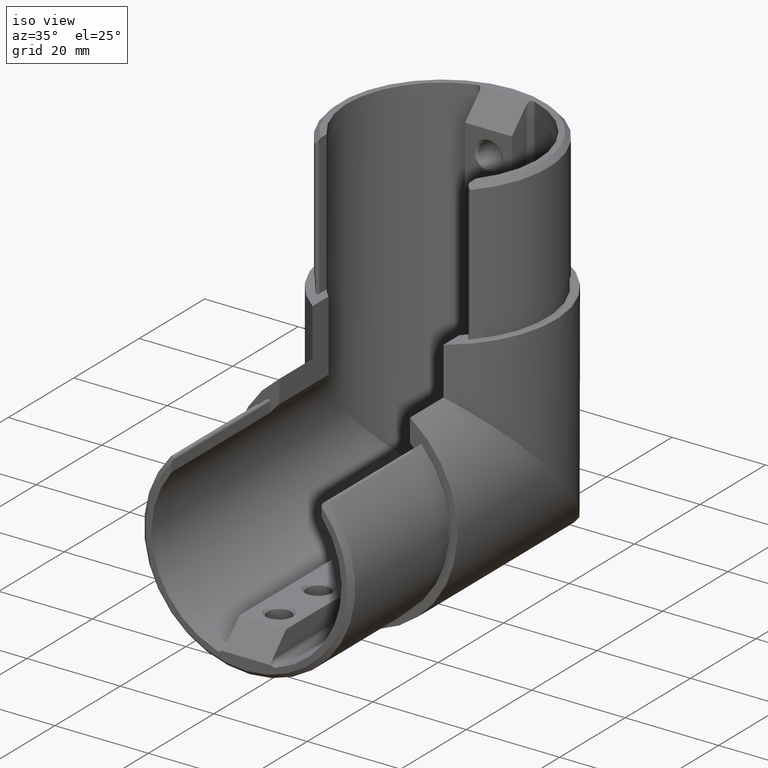
[diagram: clean part render]
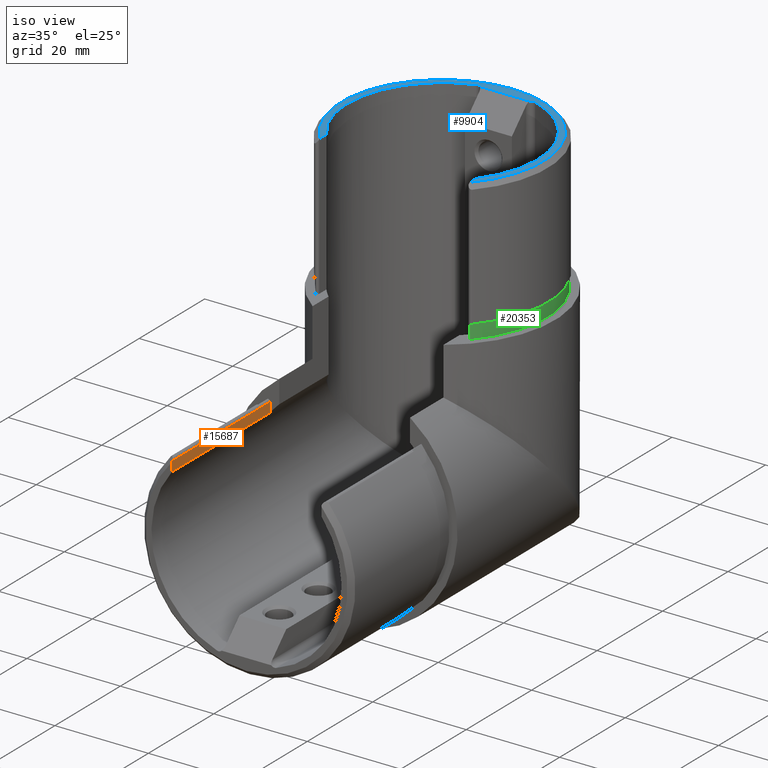
[diagram: same view with three faces highlighted in distinct colors, each labeled with its STEP entity id]
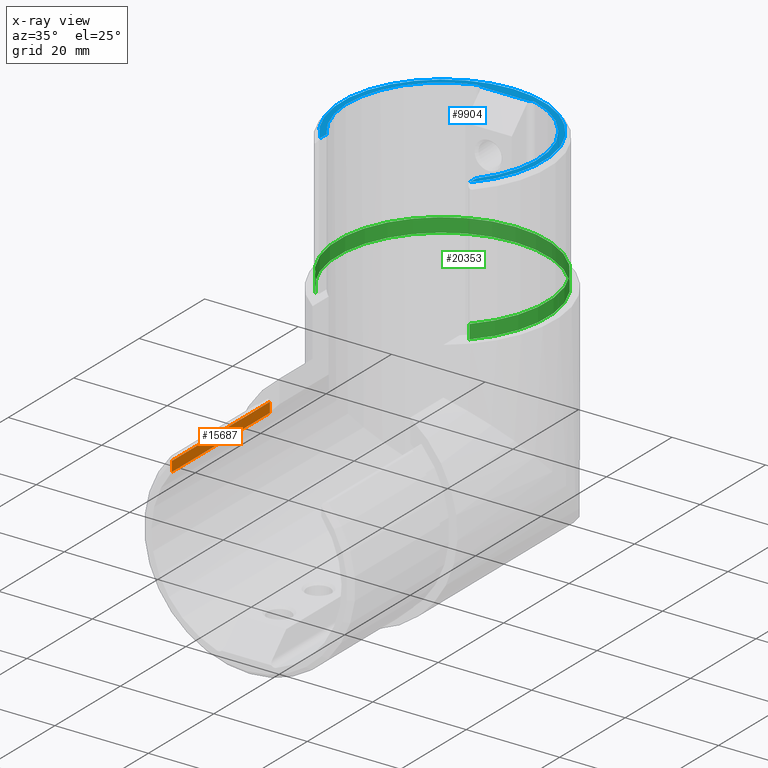
[diagram: x-ray of the same camera — body ghosted, the three highlighted faces saturated]
A machine part, iso view with three faces highlighted in distinct colors.
The next image is the same camera in x-ray (body ghosted, the three faces saturated) — at least one of them is partly hidden behind the body in this view.
Their STEP definitions:

[orange] entity #15687 — the highlighted planar face has unit normal (1, 0, 0).
#61 = PLANE ( 'NONE',  #8720 ) ;
#1219 = CARTESIAN_POINT ( 'NONE',  ( -16.00000000000000400, 0.0000000000000000000, 12.57467693421981800 ) ) ;
#1858 = VERTEX_POINT ( 'NONE', #21850 ) ;
#1959 = DIRECTION ( 'NONE',  ( 0.0000000000000000000, -1.000000000000000000, -2.220446049250313100E-016 ) ) ;
#2788 = ORIENTED_EDGE ( 'NONE', *, *, #14001, .T. ) ;
#4902 = DIRECTION ( 'NONE',  ( -0.0000000000000000000, 1.000000000000000000, 2.220446049250313100E-016 ) ) ;
#5022 = CARTESIAN_POINT ( 'NONE',  ( -16.00000000000000400, -29.99999999999999600, 12.57467693421980600 ) ) ;
#5255 = VERTEX_POINT ( 'NONE', #12194 ) ;
#5727 = ORIENTED_EDGE ( 'NONE', *, *, #16808, .T. ) ;
#5734 = ORIENTED_EDGE ( 'NONE', *, *, #23807, .T. ) ;
#6054 = VERTEX_POINT ( 'NONE', #18265 ) ;
#6685 = VECTOR ( 'NONE', #17085, 1000.000000000000000 ) ;
#7675 = DIRECTION ( 'NONE',  ( 0.0000000000000000000, 0.0000000000000000000, -1.000000000000000000 ) ) ;
#8425 = LINE ( 'NONE', #8485, #8735 ) ;
#8485 = CARTESIAN_POINT ( 'NONE',  ( -16.00000000000000400, -29.99999999999999600, 12.57467693421980600 ) ) ;
#8494 = LINE ( 'NONE', #23631, #13095 ) ;
#8595 = CARTESIAN_POINT ( 'NONE',  ( -16.00000000000000400, -29.87075703113422200, 14.70238075959128200 ) ) ;
#8720 = AXIS2_PLACEMENT_3D ( 'NONE', #10003, #13782, #7675 ) ;
#8735 = VECTOR ( 'NONE', #4902, 1000.000000000000000 ) ;
#10003 = CARTESIAN_POINT ( 'NONE',  ( -16.00000000000000400, -29.99999999999999600, 12.57467693421980600 ) ) ;
#10991 = LINE ( 'NONE', #5022, #6685 ) ;
#11295 = EDGE_CURVE ( 'NONE', #5255, #17431, #20047, .T. ) ;
#12194 = CARTESIAN_POINT ( 'NONE',  ( -16.00000000000000400, 2.997001796651528900E-015, 14.70238075959128000 ) ) ;
#13095 = VECTOR ( 'NONE', #1959, 1000.000000000000000 ) ;
#13782 = DIRECTION ( 'NONE',  ( 1.000000000000000000, 0.0000000000000000000, 0.0000000000000000000 ) ) ;
#13847 = B_SPLINE_CURVE_WITH_KNOTS ( 'NONE', 3,
 ( #8595, #24025, #14243, #16226 ),
 .UNSPECIFIED., .F., .F.,
 ( 4, 4 ),
 ( 0.001530635616908292100, 0.001761817322065297500 ),
 .UNSPECIFIED. ) ;
#14001 = EDGE_CURVE ( 'NONE', #21805, #6054, #13847, .T. ) ;
#14243 = CARTESIAN_POINT ( 'NONE',  ( -16.00000000000000400, -29.95702471097675700, 14.57465693601618500 ) ) ;
#14771 = EDGE_LOOP ( 'NONE', ( #18289, #17443, #2788, #5727, #5734 ) ) ;
#15578 = FACE_OUTER_BOUND ( 'NONE', #14771, .T. ) ;
#15687 = ADVANCED_FACE ( 'NONE', ( #15578 ), #61, .T. ) ;
#16226 = CARTESIAN_POINT ( 'NONE',  ( -16.00000000000000400, -29.99999999999999600, 14.51068571777354200 ) ) ;
#16675 = CARTESIAN_POINT ( 'NONE',  ( -16.00000000000000400, 3.469446951953614200E-015, 12.57467693421981300 ) ) ;
#16808 = EDGE_CURVE ( 'NONE', #6054, #1858, #10991, .T. ) ;
#17085 = DIRECTION ( 'NONE',  ( 0.0000000000000000000, 2.220446049250313100E-016, -1.000000000000000000 ) ) ;
#17281 = VECTOR ( 'NONE', #24569, 1000.000000000000000 ) ;
#17431 = VERTEX_POINT ( 'NONE', #1219 ) ;
#17443 = ORIENTED_EDGE ( 'NONE', *, *, #19152, .T. ) ;
#18265 = CARTESIAN_POINT ( 'NONE',  ( -16.00000000000000400, -29.99999999999999600, 14.51068571777354200 ) ) ;
#18289 = ORIENTED_EDGE ( 'NONE', *, *, #11295, .F. ) ;
#19152 = EDGE_CURVE ( 'NONE', #5255, #21805, #8494, .T. ) ;
#20047 = LINE ( 'NONE', #16675, #17281 ) ;
#20951 = CARTESIAN_POINT ( 'NONE',  ( -16.00000000000000400, -29.87075703113422200, 14.70238075959128200 ) ) ;
#21805 = VERTEX_POINT ( 'NONE', #20951 ) ;
#21850 = CARTESIAN_POINT ( 'NONE',  ( -16.00000000000000400, -29.99999999999999600, 12.57467693421980600 ) ) ;
#23631 = CARTESIAN_POINT ( 'NONE',  ( -16.00000000000000400, -29.99999999999999600, 14.70238075959127300 ) ) ;
#23807 = EDGE_CURVE ( 'NONE', #1858, #17431, #8425, .T. ) ;
#24025 = CARTESIAN_POINT ( 'NONE',  ( -16.00000000000000400, -29.91394285426274600, 14.63855468550746000 ) ) ;
#24569 = DIRECTION ( 'NONE',  ( 0.0000000000000000000, 2.220446049250313100E-016, -1.000000000000000000 ) ) ;

[blue] entity #9904 — the highlighted planar face has unit normal (0, 0, 1).
#66 = EDGE_CURVE ( 'NONE', #11297, #24157, #348, .T. ) ;
#199 = VERTEX_POINT ( 'NONE', #14787 ) ;
#348 = LINE ( 'NONE', #24857, #9850 ) ;
#548 = CARTESIAN_POINT ( 'NONE',  ( 16.00000000000000400, 17.27532306578018200, 59.85000000000000100 ) ) ;
#1955 = CIRCLE ( 'NONE', #13031, 1.000000000000000000 ) ;
#2384 = LINE ( 'NONE', #5919, #11515 ) ;
#2607 = CARTESIAN_POINT ( 'NONE',  ( 0.0000000000000000000, 48.95000000000001700, 59.85000000000000100 ) ) ;
#2746 = EDGE_LOOP ( 'NONE', ( #13804, #12158, #20610, #23987, #13715, #10777, #13408, #7395 ) ) ;
#2768 = CARTESIAN_POINT ( 'NONE',  ( -16.00000000000000400, 17.27532306578018200, 59.85000000000000100 ) ) ;
#2787 = DIRECTION ( 'NONE',  ( 1.000000000000000000, 0.0000000000000000000, 0.0000000000000000000 ) ) ;
#2804 = EDGE_CURVE ( 'NONE', #13903, #199, #1955, .T. ) ;
#3066 = PLANE ( 'NONE',  #22772 ) ;
#5031 = CARTESIAN_POINT ( 'NONE',  ( 0.0000000000000000000, 29.84999999999999800, 59.85000000000000100 ) ) ;
#5151 = DIRECTION ( 'NONE',  ( -0.0000000000000000000, 1.000000000000000000, -0.0000000000000000000 ) ) ;
#5392 = EDGE_CURVE ( 'NONE', #199, #24175, #9852, .T. ) ;
#5445 = EDGE_CURVE ( 'NONE', #7607, #10855, #17532, .T. ) ;
#5919 = CARTESIAN_POINT ( 'NONE',  ( 16.00000000000000400, 17.27532306578018200, 59.85000000000000100 ) ) ;
#5960 = DIRECTION ( 'NONE',  ( -0.0000000000000000000, -0.0000000000000000000, -1.000000000000000000 ) ) ;
#6473 = VECTOR ( 'NONE', #2787, 1000.000000000000000 ) ;
#6918 = EDGE_CURVE ( 'NONE', #24175, #7607, #10136, .T. ) ;
#6966 = DIRECTION ( 'NONE',  ( 1.000000000000000000, 0.0000000000000000000, -0.0000000000000000000 ) ) ;
#7227 = DIRECTION ( 'NONE',  ( 1.000000000000000000, 0.0000000000000000000, 0.0000000000000000000 ) ) ;
#7395 = ORIENTED_EDGE ( 'NONE', *, *, #66, .T. ) ;
#7421 = AXIS2_PLACEMENT_3D ( 'NONE', #16283, #20235, #22119 ) ;
#7607 = VERTEX_POINT ( 'NONE', #12522 ) ;
#8039 = CARTESIAN_POINT ( 'NONE',  ( -6.000000000000000000, 48.24626320751037400, 59.85000000000000100 ) ) ;
#8439 = AXIS2_PLACEMENT_3D ( 'NONE', #22413, #14245, #12470 ) ;
#9322 = EDGE_CURVE ( 'NONE', #24157, #13903, #22866, .T. ) ;
#9850 = VECTOR ( 'NONE', #5151, 1000.000000000000000 ) ;
#9852 = LINE ( 'NONE', #2607, #6473 ) ;
#9904 = ADVANCED_FACE ( 'NONE', ( #19769 ), #3066, .T. ) ;
#10012 = DIRECTION ( 'NONE',  ( 1.000000000000000000, -6.938893903907228400E-015, 0.0000000000000000000 ) ) ;
#10136 = CIRCLE ( 'NONE', #22583, 1.000000000000000000 ) ;
#10532 = DIRECTION ( 'NONE',  ( -0.0000000000000000000, -0.0000000000000000000, -1.000000000000000000 ) ) ;
#10542 = CIRCLE ( 'NONE', #25248, 21.59999999999998400 ) ;
#10777 = ORIENTED_EDGE ( 'NONE', *, *, #19634, .T. ) ;
#10855 = VERTEX_POINT ( 'NONE', #548 ) ;
#10988 = EDGE_CURVE ( 'NONE', #24872, #11297, #10542, .T. ) ;
#11297 = VERTEX_POINT ( 'NONE', #12912 ) ;
#11515 = VECTOR ( 'NONE', #15530, 1000.000000000000000 ) ;
#12158 = ORIENTED_EDGE ( 'NONE', *, *, #2804, .T. ) ;
#12470 = DIRECTION ( 'NONE',  ( 1.000000000000000000, 0.0000000000000000000, 0.0000000000000000000 ) ) ;
#12522 = CARTESIAN_POINT ( 'NONE',  ( 6.310077519379848200, 49.19697448438429900, 59.85000000000000100 ) ) ;
#12587 = DIRECTION ( 'NONE',  ( 1.000000000000000000, -6.938893903907228400E-015, 0.0000000000000000000 ) ) ;
#12912 = CARTESIAN_POINT ( 'NONE',  ( -16.00000000000000400, 15.33931428222638300, 59.85000000000000100 ) ) ;
#13031 = AXIS2_PLACEMENT_3D ( 'NONE', #8039, #5960, #10012 ) ;
#13408 = ORIENTED_EDGE ( 'NONE', *, *, #10988, .T. ) ;
#13715 = ORIENTED_EDGE ( 'NONE', *, *, #5445, .T. ) ;
#13804 = ORIENTED_EDGE ( 'NONE', *, *, #9322, .T. ) ;
#13875 = CARTESIAN_POINT ( 'NONE',  ( 16.00000000000000400, 15.33931428222638300, 59.85000000000000100 ) ) ;
#13903 = VERTEX_POINT ( 'NONE', #23253 ) ;
#14245 = DIRECTION ( 'NONE',  ( -0.0000000000000000000, -0.0000000000000000000, -1.000000000000000000 ) ) ;
#14787 = CARTESIAN_POINT ( 'NONE',  ( -5.289539215088972800, 48.95000000000001700, 59.85000000000000100 ) ) ;
#15530 = DIRECTION ( 'NONE',  ( 0.0000000000000000000, -1.000000000000000000, 0.0000000000000000000 ) ) ;
#16117 = CARTESIAN_POINT ( 'NONE',  ( 5.289539215088972800, 48.95000000000001700, 59.85000000000000100 ) ) ;
#16283 = CARTESIAN_POINT ( 'NONE',  ( 0.0000000000000000000, 29.84999999999999800, 59.85000000000000100 ) ) ;
#16934 = DIRECTION ( 'NONE',  ( 0.0000000000000000000, 0.0000000000000000000, 1.000000000000000000 ) ) ;
#17532 = CIRCLE ( 'NONE', #8439, 20.35000000000000100 ) ;
#19003 = CARTESIAN_POINT ( 'NONE',  ( 0.0000000000000000000, 29.84999999999999800, 59.85000000000000100 ) ) ;
#19634 = EDGE_CURVE ( 'NONE', #10855, #24872, #2384, .T. ) ;
#19769 = FACE_OUTER_BOUND ( 'NONE', #2746, .T. ) ;
#20235 = DIRECTION ( 'NONE',  ( -0.0000000000000000000, -0.0000000000000000000, -1.000000000000000000 ) ) ;
#20610 = ORIENTED_EDGE ( 'NONE', *, *, #5392, .T. ) ;
#22119 = DIRECTION ( 'NONE',  ( 1.000000000000000000, 0.0000000000000000000, 0.0000000000000000000 ) ) ;
#22273 = CARTESIAN_POINT ( 'NONE',  ( 6.000000000000000000, 48.24626320751037400, 59.85000000000000100 ) ) ;
#22413 = CARTESIAN_POINT ( 'NONE',  ( 0.0000000000000000000, 29.84999999999999800, 59.85000000000000100 ) ) ;
#22583 = AXIS2_PLACEMENT_3D ( 'NONE', #22273, #10532, #12587 ) ;
#22772 = AXIS2_PLACEMENT_3D ( 'NONE', #5031, #16934, #6966 ) ;
#22794 = DIRECTION ( 'NONE',  ( 0.0000000000000000000, 0.0000000000000000000, 1.000000000000000000 ) ) ;
#22866 = CIRCLE ( 'NONE', #7421, 20.35000000000000100 ) ;
#23253 = CARTESIAN_POINT ( 'NONE',  ( -6.310077519379848200, 49.19697448438429900, 59.85000000000000100 ) ) ;
#23987 = ORIENTED_EDGE ( 'NONE', *, *, #6918, .T. ) ;
#24157 = VERTEX_POINT ( 'NONE', #2768 ) ;
#24175 = VERTEX_POINT ( 'NONE', #16117 ) ;
#24857 = CARTESIAN_POINT ( 'NONE',  ( -16.00000000000000400, 17.27532306578018200, 59.85000000000000100 ) ) ;
#24872 = VERTEX_POINT ( 'NONE', #13875 ) ;
#25248 = AXIS2_PLACEMENT_3D ( 'NONE', #19003, #22794, #7227 ) ;

[green] entity #20353 — the highlighted cylindrical surface (partial cylindrical patch) has radius 22.4 mm, axis along (-0, 0, -1).
#876 = AXIS2_PLACEMENT_3D ( 'NONE', #19394, #7893, #17508 ) ;
#1164 = CIRCLE ( 'NONE', #876, 22.40000000000000600 ) ;
#2142 = DIRECTION ( 'NONE',  ( -0.0000000000000000000, 1.162293786249116600E-016, -1.000000000000000000 ) ) ;
#2248 = DIRECTION ( 'NONE',  ( -0.0000000000000000000, 1.162293786249116600E-016, -1.000000000000000000 ) ) ;
#2505 = VECTOR ( 'NONE', #2248, 1000.000000000000000 ) ;
#3307 = FACE_OUTER_BOUND ( 'NONE', #14280, .T. ) ;
#4762 = VECTOR ( 'NONE', #21953, 1000.000000000000000 ) ;
#5893 = EDGE_CURVE ( 'NONE', #6441, #20438, #17831, .T. ) ;
#6441 = VERTEX_POINT ( 'NONE', #18322 ) ;
#7111 = AXIS2_PLACEMENT_3D ( 'NONE', #23485, #25450, #19618 ) ;
#7893 = DIRECTION ( 'NONE',  ( -0.0000000000000000000, 1.162293786249116600E-016, -1.000000000000000000 ) ) ;
#9000 = VERTEX_POINT ( 'NONE', #20619 ) ;
#9589 = ORIENTED_EDGE ( 'NONE', *, *, #19678, .F. ) ;
#10789 = ORIENTED_EDGE ( 'NONE', *, *, #23698, .T. ) ;
#11809 = CARTESIAN_POINT ( 'NONE',  ( 0.0000000000000000000, 29.85000000000000100, 0.0000000000000000000 ) ) ;
#12170 = ORIENTED_EDGE ( 'NONE', *, *, #24939, .T. ) ;
#13959 = CARTESIAN_POINT ( 'NONE',  ( -16.45338357376962100, 14.64979707456482000, 31.35000000000000900 ) ) ;
#14280 = EDGE_LOOP ( 'NONE', ( #21091, #9589, #10789, #12170 ) ) ;
#15837 = DIRECTION ( 'NONE',  ( 0.0000000000000000000, 1.000000000000000000, 1.162293786249116600E-016 ) ) ;
#16299 = AXIS2_PLACEMENT_3D ( 'NONE', #11809, #2142, #15837 ) ;
#17508 = DIRECTION ( 'NONE',  ( 0.0000000000000000000, 1.000000000000000000, 1.548860246407863100E-016 ) ) ;
#17537 = CARTESIAN_POINT ( 'NONE',  ( -16.45338357376951800, 14.64979707456469500, 29.85000000000000100 ) ) ;
#17831 = LINE ( 'NONE', #17916, #2505 ) ;
#17916 = CARTESIAN_POINT ( 'NONE',  ( 16.45338357376962100, 14.64979707456482000, 31.35000000000000900 ) ) ;
#18322 = CARTESIAN_POINT ( 'NONE',  ( 16.45338357376961700, 14.64979707456482000, 32.85000000000001600 ) ) ;
#19394 = CARTESIAN_POINT ( 'NONE',  ( 0.0000000000000000000, 29.84999999999999800, 29.85000000000000100 ) ) ;
#19411 = CIRCLE ( 'NONE', #7111, 22.39999999999999900 ) ;
#19618 = DIRECTION ( 'NONE',  ( 0.0000000000000000000, 1.000000000000000000, 0.0000000000000000000 ) ) ;
#19678 = EDGE_CURVE ( 'NONE', #25448, #20438, #1164, .T. ) ;
#19703 = CARTESIAN_POINT ( 'NONE',  ( 16.45338357376951800, 14.64979707456469500, 29.85000000000000100 ) ) ;
#20353 = ADVANCED_FACE ( 'NONE', ( #3307 ), #20481, .T. ) ;
#20438 = VERTEX_POINT ( 'NONE', #19703 ) ;
#20481 = CYLINDRICAL_SURFACE ( 'NONE', #16299, 22.40000000000000200 ) ;
#20619 = CARTESIAN_POINT ( 'NONE',  ( -16.45338357376961400, 14.64979707456482000, 32.85000000000001600 ) ) ;
#21091 = ORIENTED_EDGE ( 'NONE', *, *, #5893, .T. ) ;
#21953 = DIRECTION ( 'NONE',  ( 0.0000000000000000000, -1.162293786249116600E-016, 1.000000000000000000 ) ) ;
#22243 = LINE ( 'NONE', #13959, #4762 ) ;
#23485 = CARTESIAN_POINT ( 'NONE',  ( 0.0000000000000000000, 29.84999999999999800, 32.85000000000001600 ) ) ;
#23698 = EDGE_CURVE ( 'NONE', #25448, #9000, #22243, .T. ) ;
#24939 = EDGE_CURVE ( 'NONE', #9000, #6441, #19411, .T. ) ;
#25448 = VERTEX_POINT ( 'NONE', #17537 ) ;
#25450 = DIRECTION ( 'NONE',  ( -0.0000000000000000000, 1.162293786249116600E-016, -1.000000000000000000 ) ) ;